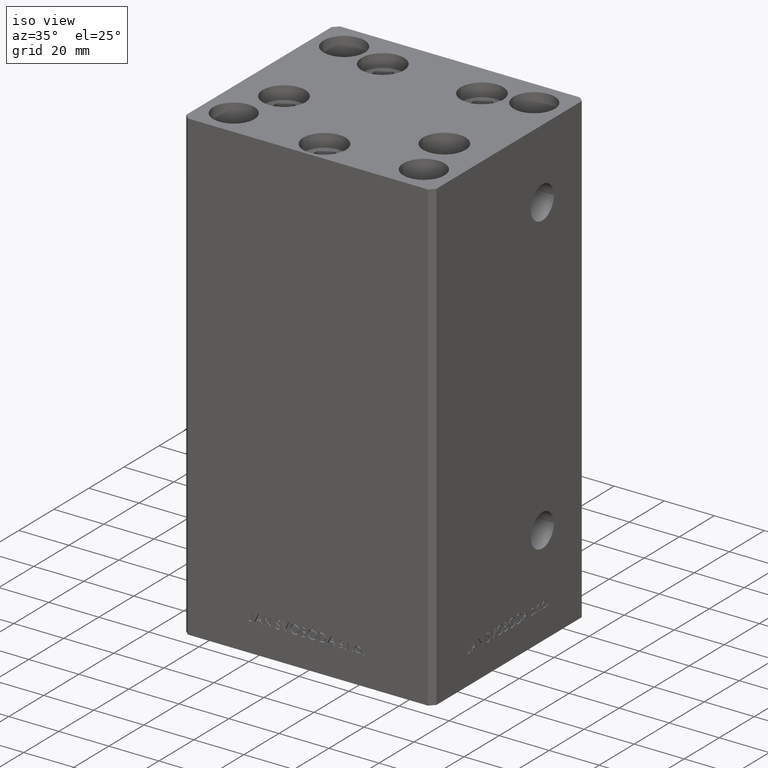
[diagram: clean part render]
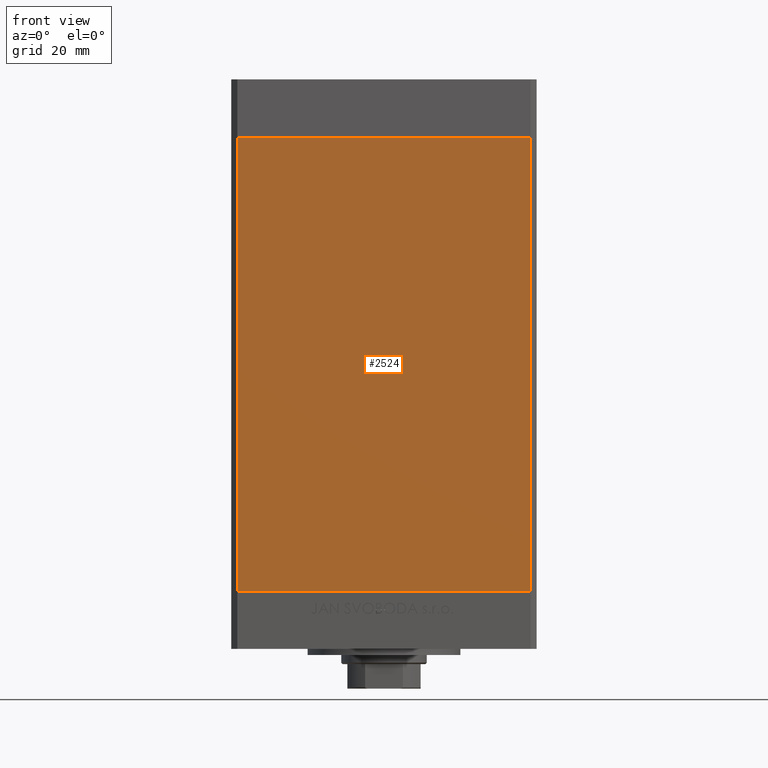
[diagram: tour spotlight — one face highlighted and labeled with its STEP entity id]
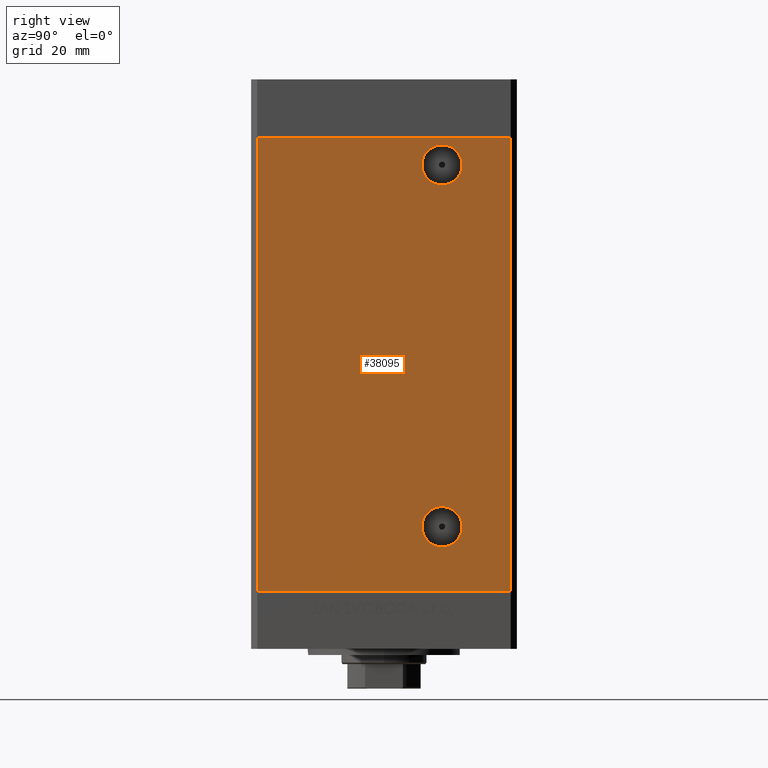
[diagram: tour spotlight — one face highlighted and labeled with its STEP entity id]
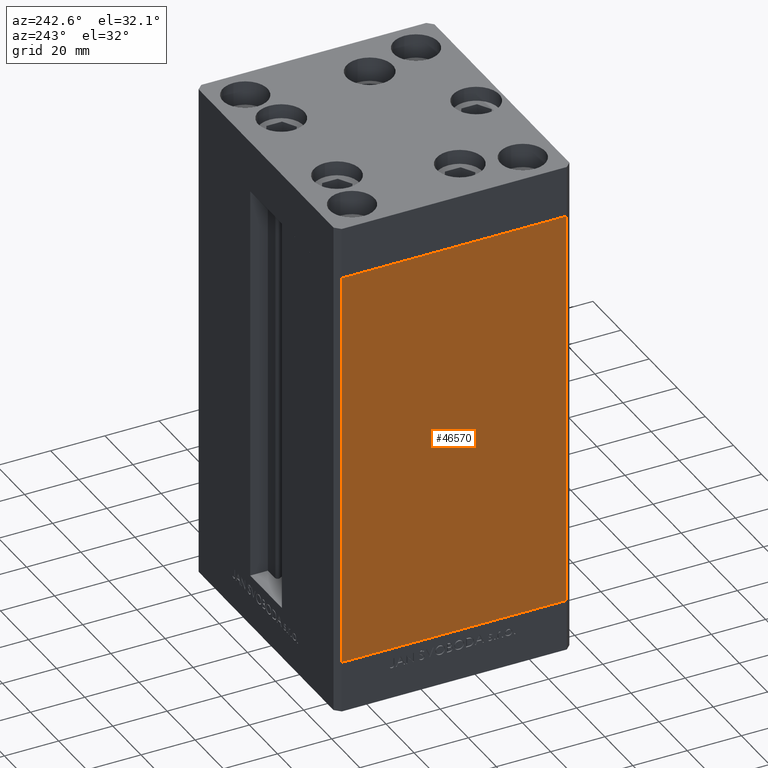
[diagram: tour spotlight — one face highlighted and labeled with its STEP entity id]
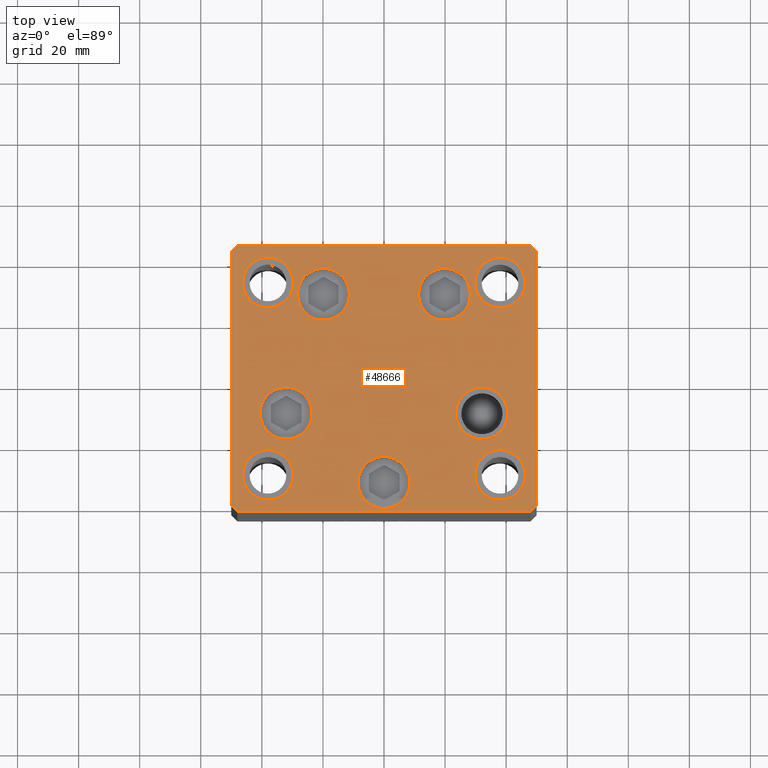
[diagram: tour spotlight — one face highlighted and labeled with its STEP entity id]
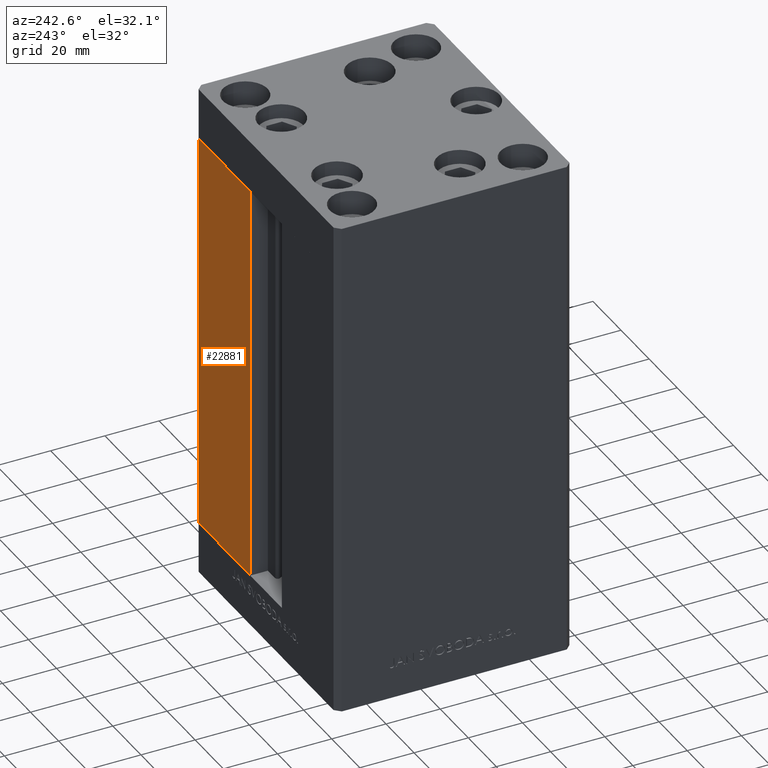
[diagram: tour spotlight — one face highlighted and labeled with its STEP entity id]
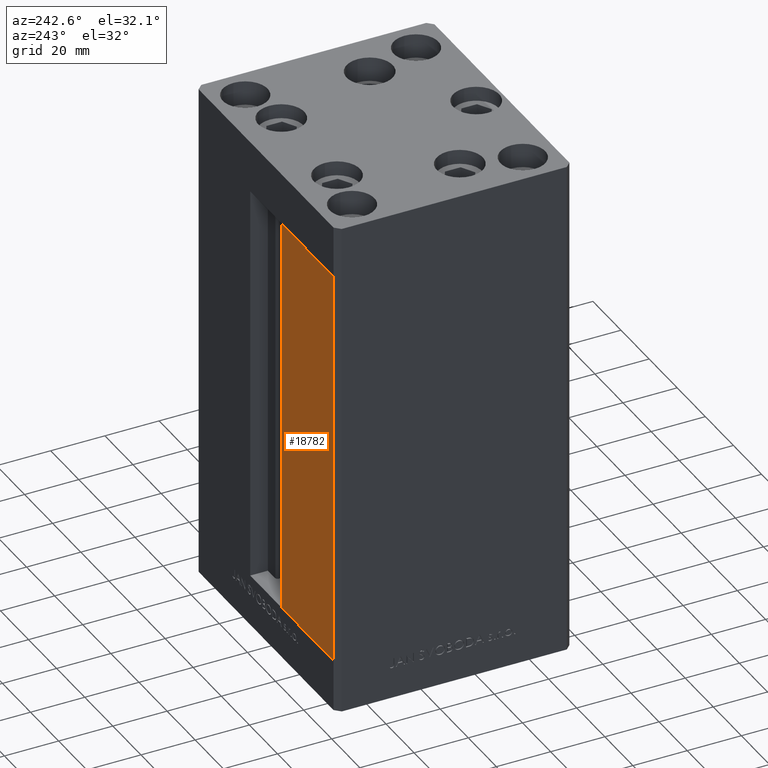
[diagram: tour spotlight — one face highlighted and labeled with its STEP entity id]
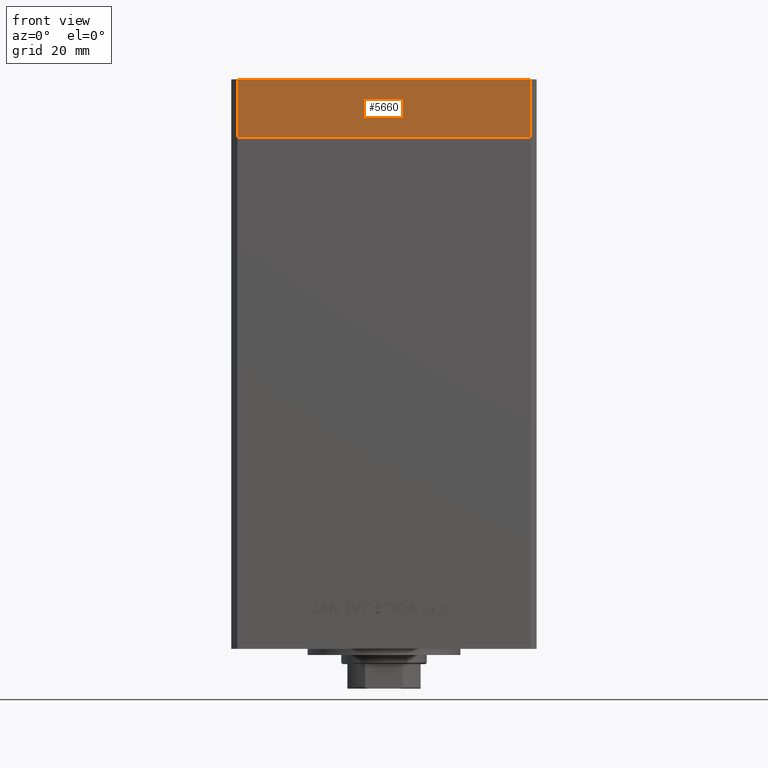
[diagram: tour spotlight — one face highlighted and labeled with its STEP entity id]
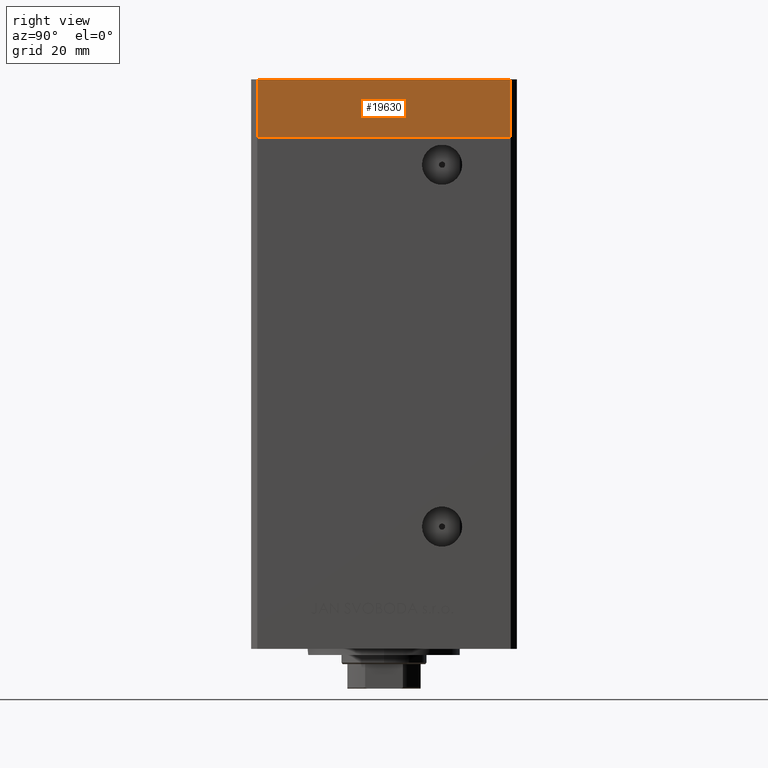
[diagram: tour spotlight — one face highlighted and labeled with its STEP entity id]
A machine part: a face-by-face anatomy tour. The part has 1172 B-rep faces; the first image is the clean iso view, then the 8 largest visible faces are spotlighted one at a time (largest first), each with its STEP entity span.

Face 1 — front view, entity #2524. In plain terms, the highlighted planar face has unit normal (0, 1, 0).
Definition (entity closure, byte-faithful):
#2524 = ADVANCED_FACE ( 'NONE', ( #46675 ), #7572, .F. ) ;
#5123 = CARTESIAN_POINT ( 'NONE',  ( -47.99999999999998579, -43.50000000000000000, 0.000000000000000000 ) ) ;
#5767 = VERTEX_POINT ( 'NONE', #42306 ) ;
#6052 = ORIENTED_EDGE ( 'NONE', *, *, #13514, .T. ) ;
#6137 = VECTOR ( 'NONE', #25437, 1000.000000000000000 ) ;
#6240 = AXIS2_PLACEMENT_3D ( 'NONE', #22899, #23383, #11577 ) ;
#7572 = PLANE ( 'NONE',  #6240 ) ;
#10107 = LINE ( 'NONE', #48481, #6137 ) ;
#10811 = ORIENTED_EDGE ( 'NONE', *, *, #49354, .F. ) ;
#11577 = DIRECTION ( 'NONE',  ( 0.000000000000000000, -0.000000000000000000, 1.000000000000000000 ) ) ;
#11850 = DIRECTION ( 'NONE',  ( 1.000000000000000000, 0.000000000000000000, 0.000000000000000000 ) ) ;
#12420 = CARTESIAN_POINT ( 'NONE',  ( 47.99999999999998579, -43.50000000000000000, 148.5000000000000000 ) ) ;
#12434 = DIRECTION ( 'NONE',  ( -0.000000000000000000, -0.000000000000000000, -1.000000000000000000 ) ) ;
#12522 = VERTEX_POINT ( 'NONE', #42968 ) ;
#12668 = LINE ( 'NONE', #35987, #34889 ) ;
#13514 = EDGE_CURVE ( 'NONE', #5767, #16871, #12668, .T. ) ;
#15611 = CARTESIAN_POINT ( 'NONE',  ( -47.99999999999998579, -43.50000000000000000, 0.000000000000000000 ) ) ;
#16871 = VERTEX_POINT ( 'NONE', #5123 ) ;
#20731 = EDGE_CURVE ( 'NONE', #16871, #12522, #42683, .T. ) ;
#21312 = VECTOR ( 'NONE', #12434, 1000.000000000000000 ) ;
#22757 = LINE ( 'NONE', #46788, #21312 ) ;
#22899 = CARTESIAN_POINT ( 'NONE',  ( -47.99999999999998579, -43.50000000000000000, 148.5000000000000000 ) ) ;
#23240 = ORIENTED_EDGE ( 'NONE', *, *, #46555, .F. ) ;
#23383 = DIRECTION ( 'NONE',  ( 0.000000000000000000, 1.000000000000000000, 0.000000000000000000 ) ) ;
#25437 = DIRECTION ( 'NONE',  ( 1.000000000000000000, 0.000000000000000000, 0.000000000000000000 ) ) ;
#27737 = DIRECTION ( 'NONE',  ( -0.000000000000000000, -0.000000000000000000, -1.000000000000000000 ) ) ;
#30742 = ORIENTED_EDGE ( 'NONE', *, *, #20731, .T. ) ;
#31861 = VERTEX_POINT ( 'NONE', #12420 ) ;
#34889 = VECTOR ( 'NONE', #27737, 1000.000000000000000 ) ;
#35987 = CARTESIAN_POINT ( 'NONE',  ( -47.99999999999998579, -43.50000000000000000, 148.5000000000000000 ) ) ;
#37898 = EDGE_LOOP ( 'NONE', ( #30742, #23240, #10811, #6052 ) ) ;
#42306 = CARTESIAN_POINT ( 'NONE',  ( -47.99999999999998579, -43.50000000000000000, 148.5000000000000000 ) ) ;
#42683 = LINE ( 'NONE', #15611, #44630 ) ;
#42968 = CARTESIAN_POINT ( 'NONE',  ( 47.99999999999998579, -43.50000000000000000, 0.000000000000000000 ) ) ;
#44630 = VECTOR ( 'NONE', #11850, 1000.000000000000000 ) ;
#46555 = EDGE_CURVE ( 'NONE', #31861, #12522, #22757, .T. ) ;
#46675 = FACE_OUTER_BOUND ( 'NONE', #37898, .T. ) ;
#46788 = CARTESIAN_POINT ( 'NONE',  ( 47.99999999999998579, -43.50000000000000000, 148.5000000000000000 ) ) ;
#48481 = CARTESIAN_POINT ( 'NONE',  ( -47.99999999999998579, -43.50000000000000000, 148.5000000000000000 ) ) ;
#49354 = EDGE_CURVE ( 'NONE', #5767, #31861, #10107, .T. ) ;

Face 2 — right view, entity #38095. In plain terms, the highlighted planar face has unit normal (1, -0, 0).
Definition (entity closure, byte-faithful):
#42 = CARTESIAN_POINT ( 'NONE',  ( 50.00000000000000711, 19.00000000000000000, 20.99999999999998934 ) ) ;
#1004 = EDGE_LOOP ( 'NONE', ( #2733, #34012, #39973, #4254 ) ) ;
#1106 = EDGE_CURVE ( 'NONE', #13713, #30093, #6198, .T. ) ;
#1894 = AXIS2_PLACEMENT_3D ( 'NONE', #8116, #49275, #23433 ) ;
#2358 = CARTESIAN_POINT ( 'NONE',  ( 50.00000000000001421, 41.49999999999999289, 148.5000000000000000 ) ) ;
#2690 = LINE ( 'NONE', #3441, #29149 ) ;
#2733 = ORIENTED_EDGE ( 'NONE', *, *, #46235, .F. ) ;
#3441 = CARTESIAN_POINT ( 'NONE',  ( 50.00000000000001421, 41.49999999999999289, 148.5000000000000000 ) ) ;
#4254 = ORIENTED_EDGE ( 'NONE', *, *, #25987, .T. ) ;
#4959 = CARTESIAN_POINT ( 'NONE',  ( 50.00000000000000711, 19.00000000000000000, 20.99999999999998934 ) ) ;
#5710 = LINE ( 'NONE', #25281, #7639 ) ;
#5888 = VERTEX_POINT ( 'NONE', #18192 ) ;
#6198 = CIRCLE ( 'NONE', #46253, 6.580000000000016058 ) ;
#6632 = DIRECTION ( 'NONE',  ( 1.000000000000000000, -2.275047181608927644E-16, 0.000000000000000000 ) ) ;
#6740 = CARTESIAN_POINT ( 'NONE',  ( 50.00000000000000711, 19.00000000000000000, 139.4999999999999716 ) ) ;
#7639 = VECTOR ( 'NONE', #32789, 1000.000000000000000 ) ;
#7882 = PLANE ( 'NONE',  #1894 ) ;
#8116 = CARTESIAN_POINT ( 'NONE',  ( 50.00000000000001421, 41.49999999999999289, 148.5000000000000000 ) ) ;
#8767 = EDGE_CURVE ( 'NONE', #30952, #44759, #2690, .T. ) ;
#9143 = CARTESIAN_POINT ( 'NONE',  ( 49.99999999999998579, -41.49999999999999289, 0.000000000000000000 ) ) ;
#9196 = CARTESIAN_POINT ( 'NONE',  ( 50.00000000000000711, 25.58000000000001606, 139.4999999999999716 ) ) ;
#10253 = DIRECTION ( 'NONE',  ( 1.000000000000000000, -2.275047181608927644E-16, 0.000000000000000000 ) ) ;
#12789 = EDGE_CURVE ( 'NONE', #38623, #42017, #22066, .T. ) ;
#13481 = VERTEX_POINT ( 'NONE', #9143 ) ;
#13713 = VERTEX_POINT ( 'NONE', #9196 ) ;
#14533 = CARTESIAN_POINT ( 'NONE',  ( 50.00000000000000711, 25.58000000000000540, 20.99999999999998934 ) ) ;
#14753 = DIRECTION ( 'NONE',  ( 0.000000000000000000, 1.000000000000000000, 0.000000000000000000 ) ) ;
#15005 = CARTESIAN_POINT ( 'NONE',  ( 49.99999999999998579, -41.49999999999999289, 148.5000000000000000 ) ) ;
#15426 = EDGE_CURVE ( 'NONE', #42017, #38623, #40550, .T. ) ;
#16737 = VECTOR ( 'NONE', #41868, 1000.000000000000000 ) ;
#18192 = CARTESIAN_POINT ( 'NONE',  ( 50.00000000000001421, 41.49999999999999289, 0.000000000000000000 ) ) ;
#18284 = EDGE_LOOP ( 'NONE', ( #34317, #48679 ) ) ;
#18413 = CARTESIAN_POINT ( 'NONE',  ( 50.00000000000000711, 19.00000000000000000, 139.4999999999999716 ) ) ;
#18672 = EDGE_CURVE ( 'NONE', #30952, #5888, #49370, .T. ) ;
#18912 = DIRECTION ( 'NONE',  ( 0.000000000000000000, 1.000000000000000000, 0.000000000000000000 ) ) ;
#20521 = DIRECTION ( 'NONE',  ( 1.000000000000000000, -2.275047181608927644E-16, 0.000000000000000000 ) ) ;
#22066 = CIRCLE ( 'NONE', #36445, 6.580000000000006288 ) ;
#22461 = FACE_BOUND ( 'NONE', #29614, .T. ) ;
#23433 = DIRECTION ( 'NONE',  ( 3.344045254895050480E-16, 1.000000000000000000, 0.000000000000000000 ) ) ;
#25281 = CARTESIAN_POINT ( 'NONE',  ( 50.00000000000001421, 41.49999999999999289, 0.000000000000000000 ) ) ;
#25510 = CARTESIAN_POINT ( 'NONE',  ( 50.00000000000000711, 12.41999999999999282, 20.99999999999998934 ) ) ;
#25987 = EDGE_CURVE ( 'NONE', #44759, #13481, #33354, .T. ) ;
#26466 = FACE_BOUND ( 'NONE', #18284, .T. ) ;
#29149 = VECTOR ( 'NONE', #33542, 1000.000000000000000 ) ;
#29612 = CARTESIAN_POINT ( 'NONE',  ( 49.99999999999998579, -41.49999999999999289, 148.5000000000000000 ) ) ;
#29614 = EDGE_LOOP ( 'NONE', ( #43156, #41106 ) ) ;
#29937 = AXIS2_PLACEMENT_3D ( 'NONE', #6740, #10253, #14753 ) ;
#30093 = VERTEX_POINT ( 'NONE', #36349 ) ;
#30886 = DIRECTION ( 'NONE',  ( 0.000000000000000000, 1.000000000000000000, 0.000000000000000000 ) ) ;
#30952 = VERTEX_POINT ( 'NONE', #2358 ) ;
#32789 = DIRECTION ( 'NONE',  ( -3.344045254895050973E-16, -1.000000000000000000, 0.000000000000000000 ) ) ;
#33132 = CIRCLE ( 'NONE', #29937, 6.580000000000016058 ) ;
#33354 = LINE ( 'NONE', #29612, #16737 ) ;
#33542 = DIRECTION ( 'NONE',  ( -3.344045254895050973E-16, -1.000000000000000000, 0.000000000000000000 ) ) ;
#34012 = ORIENTED_EDGE ( 'NONE', *, *, #18672, .F. ) ;
#34317 = ORIENTED_EDGE ( 'NONE', *, *, #12789, .F. ) ;
#35810 = DIRECTION ( 'NONE',  ( 0.000000000000000000, 1.000000000000000000, 0.000000000000000000 ) ) ;
#36349 = CARTESIAN_POINT ( 'NONE',  ( 50.00000000000000711, 12.41999999999998394, 139.4999999999999716 ) ) ;
#36445 = AXIS2_PLACEMENT_3D ( 'NONE', #42, #38162, #30886 ) ;
#38095 = ADVANCED_FACE ( 'NONE', ( #26466, #22461, #42228 ), #7882, .T. ) ;
#38162 = DIRECTION ( 'NONE',  ( 1.000000000000000000, -2.275047181608927644E-16, 0.000000000000000000 ) ) ;
#38623 = VERTEX_POINT ( 'NONE', #14533 ) ;
#39973 = ORIENTED_EDGE ( 'NONE', *, *, #8767, .T. ) ;
#40550 = CIRCLE ( 'NONE', #48577, 6.580000000000006288 ) ;
#41106 = ORIENTED_EDGE ( 'NONE', *, *, #41605, .F. ) ;
#41340 = CARTESIAN_POINT ( 'NONE',  ( 50.00000000000001421, 41.49999999999999289, 148.5000000000000000 ) ) ;
#41605 = EDGE_CURVE ( 'NONE', #30093, #13713, #33132, .T. ) ;
#41868 = DIRECTION ( 'NONE',  ( -0.000000000000000000, -0.000000000000000000, -1.000000000000000000 ) ) ;
#42017 = VERTEX_POINT ( 'NONE', #25510 ) ;
#42228 = FACE_OUTER_BOUND ( 'NONE', #1004, .T. ) ;
#42258 = VECTOR ( 'NONE', #44614, 1000.000000000000000 ) ;
#43156 = ORIENTED_EDGE ( 'NONE', *, *, #1106, .F. ) ;
#44614 = DIRECTION ( 'NONE',  ( -0.000000000000000000, -0.000000000000000000, -1.000000000000000000 ) ) ;
#44759 = VERTEX_POINT ( 'NONE', #15005 ) ;
#46235 = EDGE_CURVE ( 'NONE', #5888, #13481, #5710, .T. ) ;
#46253 = AXIS2_PLACEMENT_3D ( 'NONE', #18413, #6632, #18912 ) ;
#48577 = AXIS2_PLACEMENT_3D ( 'NONE', #4959, #20521, #35810 ) ;
#48679 = ORIENTED_EDGE ( 'NONE', *, *, #15426, .F. ) ;
#49275 = DIRECTION ( 'NONE',  ( 1.000000000000000000, -3.344045254895050480E-16, 0.000000000000000000 ) ) ;
#49370 = LINE ( 'NONE', #41340, #42258 ) ;

Face 3 — auxiliary view, entity #46570. In plain terms, the highlighted planar face has unit normal (1, 0, 0).
Definition (entity closure, byte-faithful):
#564 = ORIENTED_EDGE ( 'NONE', *, *, #30893, .T. ) ;
#4270 = EDGE_CURVE ( 'NONE', #11676, #13670, #29501, .T. ) ;
#4411 = CARTESIAN_POINT ( 'NONE',  ( -50.00000000000001421, 41.49999999999999289, 148.5000000000000000 ) ) ;
#9083 = VERTEX_POINT ( 'NONE', #41686 ) ;
#10080 = ORIENTED_EDGE ( 'NONE', *, *, #4270, .F. ) ;
#11190 = CARTESIAN_POINT ( 'NONE',  ( -50.00000000000001421, 41.49999999999999289, 148.5000000000000000 ) ) ;
#11325 = VECTOR ( 'NONE', #14137, 1000.000000000000000 ) ;
#11676 = VERTEX_POINT ( 'NONE', #14399 ) ;
#11937 = DIRECTION ( 'NONE',  ( 3.344045254895050973E-16, -1.000000000000000000, 0.000000000000000000 ) ) ;
#12716 = CARTESIAN_POINT ( 'NONE',  ( -49.99999999999998579, -41.49999999999999289, 0.000000000000000000 ) ) ;
#13070 = EDGE_CURVE ( 'NONE', #27312, #11676, #29599, .T. ) ;
#13670 = VERTEX_POINT ( 'NONE', #12716 ) ;
#14137 = DIRECTION ( 'NONE',  ( -0.000000000000000000, -0.000000000000000000, -1.000000000000000000 ) ) ;
#14399 = CARTESIAN_POINT ( 'NONE',  ( -49.99999999999998579, -41.49999999999999289, 148.5000000000000000 ) ) ;
#15448 = PLANE ( 'NONE',  #27724 ) ;
#16173 = VECTOR ( 'NONE', #48052, 1000.000000000000000 ) ;
#17230 = ORIENTED_EDGE ( 'NONE', *, *, #39232, .T. ) ;
#21061 = VECTOR ( 'NONE', #11937, 1000.000000000000000 ) ;
#25204 = CARTESIAN_POINT ( 'NONE',  ( -50.00000000000001421, 41.49999999999999289, 148.5000000000000000 ) ) ;
#27259 = FACE_OUTER_BOUND ( 'NONE', #39900, .T. ) ;
#27312 = VERTEX_POINT ( 'NONE', #11190 ) ;
#27724 = AXIS2_PLACEMENT_3D ( 'NONE', #4411, #35005, #31002 ) ;
#29501 = LINE ( 'NONE', #41009, #16173 ) ;
#29599 = LINE ( 'NONE', #32620, #46093 ) ;
#30893 = EDGE_CURVE ( 'NONE', #27312, #9083, #40971, .T. ) ;
#31002 = DIRECTION ( 'NONE',  ( -3.344045254895050480E-16, 1.000000000000000000, 0.000000000000000000 ) ) ;
#32289 = ORIENTED_EDGE ( 'NONE', *, *, #13070, .F. ) ;
#32620 = CARTESIAN_POINT ( 'NONE',  ( -50.00000000000001421, 41.49999999999999289, 148.5000000000000000 ) ) ;
#35005 = DIRECTION ( 'NONE',  ( 1.000000000000000000, 3.344045254895050480E-16, -0.000000000000000000 ) ) ;
#35762 = CARTESIAN_POINT ( 'NONE',  ( -50.00000000000001421, 41.49999999999999289, 0.000000000000000000 ) ) ;
#39232 = EDGE_CURVE ( 'NONE', #9083, #13670, #39525, .T. ) ;
#39525 = LINE ( 'NONE', #35762, #21061 ) ;
#39900 = EDGE_LOOP ( 'NONE', ( #17230, #10080, #32289, #564 ) ) ;
#40971 = LINE ( 'NONE', #25204, #11325 ) ;
#41009 = CARTESIAN_POINT ( 'NONE',  ( -49.99999999999998579, -41.49999999999999289, 148.5000000000000000 ) ) ;
#41115 = DIRECTION ( 'NONE',  ( 3.344045254895050973E-16, -1.000000000000000000, 0.000000000000000000 ) ) ;
#41686 = CARTESIAN_POINT ( 'NONE',  ( -50.00000000000001421, 41.49999999999999289, 0.000000000000000000 ) ) ;
#46093 = VECTOR ( 'NONE', #41115, 1000.000000000000000 ) ;
#46570 = ADVANCED_FACE ( 'NONE', ( #27259 ), #15448, .F. ) ;
#48052 = DIRECTION ( 'NONE',  ( -0.000000000000000000, -0.000000000000000000, -1.000000000000000000 ) ) ;

Face 4 — top view, entity #48666. In plain terms, the highlighted planar face has unit normal (0, 0, 1).
Definition (entity closure, byte-faithful):
#317 = DIRECTION ( 'NONE',  ( -0.7071067811865474617, 0.7071067811865474617, 0.000000000000000000 ) ) ;
#379 = LINE ( 'NONE', #49555, #5143 ) ;
#416 = FACE_OUTER_BOUND ( 'NONE', #40381, .T. ) ;
#1618 = DIRECTION ( 'NONE',  ( 1.000000000000000000, 0.000000000000000000, 0.000000000000000000 ) ) ;
#1687 = DIRECTION ( 'NONE',  ( 0.7071067811865474617, -0.7071067811865474617, 0.000000000000000000 ) ) ;
#1897 = EDGE_CURVE ( 'NONE', #15250, #6557, #27103, .T. ) ;
#1930 = CARTESIAN_POINT ( 'NONE',  ( -50.00000000000000000, -41.50000000000000000, 0.000000000000000000 ) ) ;
#2087 = ORIENTED_EDGE ( 'NONE', *, *, #15836, .T. ) ;
#2426 = DIRECTION ( 'NONE',  ( 1.000000000000000000, 0.000000000000000000, 0.000000000000000000 ) ) ;
#2568 = ORIENTED_EDGE ( 'NONE', *, *, #16957, .F. ) ;
#2708 = CIRCLE ( 'NONE', #24367, 8.250000000000000000 ) ;
#2758 = VERTEX_POINT ( 'NONE', #18559 ) ;
#3181 = DIRECTION ( 'NONE',  ( 1.000000000000000000, 0.000000000000000000, 0.000000000000000000 ) ) ;
#3205 = VERTEX_POINT ( 'NONE', #28820 ) ;
#3386 = CARTESIAN_POINT ( 'NONE',  ( 11.32068048781373015, 27.62500000000000000, 0.000000000000000000 ) ) ;
#3423 = CARTESIAN_POINT ( 'NONE',  ( 32.05550741379015278, -11.33333333333333037, 0.000000000000000000 ) ) ;
#3429 = DIRECTION ( 'NONE',  ( -1.003213576468515193E-15, 1.000000000000000000, 0.000000000000000000 ) ) ;
#3671 = DIRECTION ( 'NONE',  ( 0.000000000000000000, -0.000000000000000000, -1.000000000000000000 ) ) ;
#4099 = ORIENTED_EDGE ( 'NONE', *, *, #41877, .T. ) ;
#4681 = FACE_BOUND ( 'NONE', #30616, .T. ) ;
#4709 = DIRECTION ( 'NONE',  ( 0.000000000000000000, -0.000000000000000000, -1.000000000000000000 ) ) ;
#4714 = VERTEX_POINT ( 'NONE', #20067 ) ;
#4725 = CARTESIAN_POINT ( 'NONE',  ( 4.163799117101000559E-15, -34.00000000000000000, 0.000000000000000000 ) ) ;
#4893 = CARTESIAN_POINT ( 'NONE',  ( -11.32068048781373726, 27.62499999999999645, 0.000000000000000000 ) ) ;
#5090 = DIRECTION ( 'NONE',  ( 1.000000000000000000, 0.000000000000000000, 0.000000000000000000 ) ) ;
#5143 = VECTOR ( 'NONE', #34732, 1000.000000000000000 ) ;
#5212 = CIRCLE ( 'NONE', #14014, 8.500000000000000000 ) ;
#5368 = CIRCLE ( 'NONE', #39020, 8.250000000000000000 ) ;
#5376 = CARTESIAN_POINT ( 'NONE',  ( -38.00000000000000000, 31.50000000000000000, 0.000000000000000000 ) ) ;
#5690 = VERTEX_POINT ( 'NONE', #48858 ) ;
#5868 = EDGE_CURVE ( 'NONE', #2758, #49202, #13803, .T. ) ;
#5939 = ORIENTED_EDGE ( 'NONE', *, *, #33679, .F. ) ;
#6092 = EDGE_LOOP ( 'NONE', ( #25659, #2568 ) ) ;
#6557 = VERTEX_POINT ( 'NONE', #13693 ) ;
#6847 = DIRECTION ( 'NONE',  ( 0.000000000000000000, 0.000000000000000000, 1.000000000000000000 ) ) ;
#7023 = VERTEX_POINT ( 'NONE', #40967 ) ;
#7101 = DIRECTION ( 'NONE',  ( 1.000000000000000000, 0.000000000000000000, 0.000000000000000000 ) ) ;
#7975 = DIRECTION ( 'NONE',  ( 1.000000000000000000, 0.000000000000000000, 0.000000000000000000 ) ) ;
#7991 = DIRECTION ( 'NONE',  ( 0.000000000000000000, 0.000000000000000000, 1.000000000000000000 ) ) ;
#8031 = DIRECTION ( 'NONE',  ( 0.000000000000000000, -0.000000000000000000, -1.000000000000000000 ) ) ;
#8188 = FACE_BOUND ( 'NONE', #42641, .T. ) ;
#8433 = CIRCLE ( 'NONE', #35689, 8.500000000000000000 ) ;
#8440 = FACE_BOUND ( 'NONE', #41411, .T. ) ;
#8824 = VERTEX_POINT ( 'NONE', #44830 ) ;
#8965 = ORIENTED_EDGE ( 'NONE', *, *, #45511, .T. ) ;
#8966 = EDGE_CURVE ( 'NONE', #31712, #35162, #2708, .T. ) ;
#8976 = CIRCLE ( 'NONE', #19367, 8.250000000000000000 ) ;
#9454 = EDGE_LOOP ( 'NONE', ( #20092, #18007 ) ) ;
#9470 = VERTEX_POINT ( 'NONE', #13255 ) ;
#9805 = DIRECTION ( 'NONE',  ( 0.7071067811865463515, 0.7071067811865487940, 0.000000000000000000 ) ) ;
#9869 = DIRECTION ( 'NONE',  ( 0.000000000000000000, 0.000000000000000000, 1.000000000000000000 ) ) ;
#10097 = ORIENTED_EDGE ( 'NONE', *, *, #49258, .T. ) ;
#10171 = DIRECTION ( 'NONE',  ( 0.000000000000000000, -0.000000000000000000, -1.000000000000000000 ) ) ;
#10289 = ORIENTED_EDGE ( 'NONE', *, *, #44266, .T. ) ;
#10587 = DIRECTION ( 'NONE',  ( 1.000000000000000000, 0.000000000000000000, 0.000000000000000000 ) ) ;
#10867 = ORIENTED_EDGE ( 'NONE', *, *, #28725, .T. ) ;
#10900 = CIRCLE ( 'NONE', #42152, 8.250000000000000000 ) ;
#11219 = PLANE ( 'NONE',  #33345 ) ;
#11691 = CARTESIAN_POINT ( 'NONE',  ( 38.00000000000000000, 31.49999999999999289, 0.000000000000000000 ) ) ;
#11725 = CARTESIAN_POINT ( 'NONE',  ( 38.00000000000000000, 31.49999999999999289, 0.000000000000000000 ) ) ;
#11809 = EDGE_CURVE ( 'NONE', #4714, #49180, #32173, .T. ) ;
#11828 = VERTEX_POINT ( 'NONE', #31436 ) ;
#12003 = CIRCLE ( 'NONE', #43232, 8.499999999999992895 ) ;
#12384 = EDGE_CURVE ( 'NONE', #8824, #15079, #29536, .T. ) ;
#13035 = ORIENTED_EDGE ( 'NONE', *, *, #29723, .T. ) ;
#13255 = CARTESIAN_POINT ( 'NONE',  ( 28.32068048781373193, 27.62500000000000000, 0.000000000000000000 ) ) ;
#13693 = CARTESIAN_POINT ( 'NONE',  ( 29.74999999999999645, -31.49999999999999289, 0.000000000000000000 ) ) ;
#13803 = CIRCLE ( 'NONE', #41842, 8.500000000000000000 ) ;
#14014 = AXIS2_PLACEMENT_3D ( 'NONE', #22862, #8031, #46393 ) ;
#14303 = EDGE_CURVE ( 'NONE', #11828, #34244, #27728, .T. ) ;
#14553 = VERTEX_POINT ( 'NONE', #4893 ) ;
#14662 = DIRECTION ( 'NONE',  ( 0.000000000000000000, -0.000000000000000000, -1.000000000000000000 ) ) ;
#14842 = CARTESIAN_POINT ( 'NONE',  ( 47.99999999999990763, 43.50000000000000000, 0.000000000000000000 ) ) ;
#14911 = CARTESIAN_POINT ( 'NONE',  ( -19.82068048781373903, 27.62499999999999645, 0.000000000000000000 ) ) ;
#14987 = DIRECTION ( 'NONE',  ( 1.000000000000000000, 0.000000000000000000, 0.000000000000000000 ) ) ;
#15079 = VERTEX_POINT ( 'NONE', #23608 ) ;
#15116 = CARTESIAN_POINT ( 'NONE',  ( -40.55550741379015278, -11.33333333333333925, 0.000000000000000000 ) ) ;
#15126 = CIRCLE ( 'NONE', #45597, 8.250000000000000000 ) ;
#15229 = CIRCLE ( 'NONE', #43263, 8.500000000000000000 ) ;
#15250 = VERTEX_POINT ( 'NONE', #21078 ) ;
#15518 = VECTOR ( 'NONE', #1687, 1000.000000000000114 ) ;
#15552 = AXIS2_PLACEMENT_3D ( 'NONE', #29030, #43822, #2426 ) ;
#15714 = CARTESIAN_POINT ( 'NONE',  ( -46.25000000000000000, 31.50000000000000000, 0.000000000000000000 ) ) ;
#15836 = EDGE_CURVE ( 'NONE', #37533, #17765, #18355, .T. ) ;
#15966 = FACE_BOUND ( 'NONE', #9454, .T. ) ;
#16131 = CARTESIAN_POINT ( 'NONE',  ( -47.99999999999999289, -43.50000000000001421, 0.000000000000000000 ) ) ;
#16262 = DIRECTION ( 'NONE',  ( 1.000000000000000000, 0.000000000000000000, 0.000000000000000000 ) ) ;
#16410 = DIRECTION ( 'NONE',  ( 0.000000000000000000, 0.000000000000000000, 1.000000000000000000 ) ) ;
#16603 = LINE ( 'NONE', #31915, #17919 ) ;
#16957 = EDGE_CURVE ( 'NONE', #40777, #29815, #5368, .T. ) ;
#17087 = LINE ( 'NONE', #32644, #23297 ) ;
#17599 = EDGE_LOOP ( 'NONE', ( #46879, #33472 ) ) ;
#17664 = DIRECTION ( 'NONE',  ( 1.000000000000000000, 0.000000000000000000, 0.000000000000000000 ) ) ;
#17712 = ORIENTED_EDGE ( 'NONE', *, *, #41130, .T. ) ;
#17765 = VERTEX_POINT ( 'NONE', #46318 ) ;
#17919 = VECTOR ( 'NONE', #317, 1000.000000000000114 ) ;
#18007 = ORIENTED_EDGE ( 'NONE', *, *, #5868, .T. ) ;
#18264 = CARTESIAN_POINT ( 'NONE',  ( -46.24999999999999289, -31.50000000000000000, 0.000000000000000000 ) ) ;
#18355 = LINE ( 'NONE', #14842, #36543 ) ;
#18365 = CARTESIAN_POINT ( 'NONE',  ( -28.32068048781373903, 27.62499999999999645, 0.000000000000000000 ) ) ;
#18442 = DIRECTION ( 'NONE',  ( 1.000000000000000000, 0.000000000000000000, 0.000000000000000000 ) ) ;
#18559 = CARTESIAN_POINT ( 'NONE',  ( -23.55550741379015278, -11.33333333333333748, 0.000000000000000000 ) ) ;
#18689 = CARTESIAN_POINT ( 'NONE',  ( 46.25000000000000000, 31.49999999999999289, 0.000000000000000000 ) ) ;
#18853 = EDGE_CURVE ( 'NONE', #14553, #32780, #31872, .T. ) ;
#19367 = AXIS2_PLACEMENT_3D ( 'NONE', #41198, #6847, #49479 ) ;
#19464 = AXIS2_PLACEMENT_3D ( 'NONE', #43387, #36114, #35117 ) ;
#19514 = CARTESIAN_POINT ( 'NONE',  ( 19.82068048781373193, 27.62500000000000000, 0.000000000000000000 ) ) ;
#19769 = ORIENTED_EDGE ( 'NONE', *, *, #35721, .T. ) ;
#19793 = CIRCLE ( 'NONE', #21379, 8.250000000000000000 ) ;
#20032 = DIRECTION ( 'NONE',  ( 1.000000000000000000, 0.000000000000000000, 0.000000000000000000 ) ) ;
#20038 = DIRECTION ( 'NONE',  ( 0.000000000000000000, -0.000000000000000000, -1.000000000000000000 ) ) ;
#20067 = CARTESIAN_POINT ( 'NONE',  ( -47.99999999999999289, -43.50000000000001421, 0.000000000000000000 ) ) ;
#20092 = ORIENTED_EDGE ( 'NONE', *, *, #31938, .T. ) ;
#20979 = AXIS2_PLACEMENT_3D ( 'NONE', #33207, #36730, #17664 ) ;
#21078 = CARTESIAN_POINT ( 'NONE',  ( 46.25000000000000000, -31.49999999999999289, 0.000000000000000000 ) ) ;
#21379 = AXIS2_PLACEMENT_3D ( 'NONE', #47751, #16410, #27462 ) ;
#21841 = DIRECTION ( 'NONE',  ( 1.000000000000000000, 0.000000000000000000, 0.000000000000000000 ) ) ;
#22035 = VECTOR ( 'NONE', #5090, 1000.000000000000000 ) ;
#22207 = CIRCLE ( 'NONE', #42981, 8.499999999999992895 ) ;
#22517 = CARTESIAN_POINT ( 'NONE',  ( 50.00000000000000000, -41.49999999999999289, 0.000000000000000000 ) ) ;
#22862 = CARTESIAN_POINT ( 'NONE',  ( 4.163799117101000559E-15, -34.00000000000000000, 0.000000000000000000 ) ) ;
#22886 = ORIENTED_EDGE ( 'NONE', *, *, #18853, .T. ) ;
#23063 = CARTESIAN_POINT ( 'NONE',  ( 38.00000000000000000, -31.49999999999999289, 0.000000000000000000 ) ) ;
#23297 = VECTOR ( 'NONE', #9805, 1000.000000000000000 ) ;
#23608 = CARTESIAN_POINT ( 'NONE',  ( 49.99999999999992184, 41.49999999999998579, 0.000000000000000000 ) ) ;
#23760 = FACE_BOUND ( 'NONE', #44014, .T. ) ;
#23808 = CARTESIAN_POINT ( 'NONE',  ( 47.99999999999990763, 43.50000000000000000, 0.000000000000000000 ) ) ;
#24367 = AXIS2_PLACEMENT_3D ( 'NONE', #40032, #28013, #10587 ) ;
#24945 = DIRECTION ( 'NONE',  ( -0.7071067811865463515, -0.7071067811865487940, 0.000000000000000000 ) ) ;
#25339 = ORIENTED_EDGE ( 'NONE', *, *, #49415, .T. ) ;
#25659 = ORIENTED_EDGE ( 'NONE', *, *, #49018, .F. ) ;
#25873 = EDGE_CURVE ( 'NONE', #35162, #31712, #15126, .T. ) ;
#26539 = DIRECTION ( 'NONE',  ( -0.000000000000000000, 0.000000000000000000, 1.000000000000000000 ) ) ;
#26617 = ORIENTED_EDGE ( 'NONE', *, *, #43471, .T. ) ;
#27029 = FACE_BOUND ( 'NONE', #48954, .T. ) ;
#27055 = DIRECTION ( 'NONE',  ( 0.000000000000000000, 0.000000000000000000, 1.000000000000000000 ) ) ;
#27103 = CIRCLE ( 'NONE', #32668, 8.250000000000000000 ) ;
#27462 = DIRECTION ( 'NONE',  ( 1.000000000000000000, 0.000000000000000000, 0.000000000000000000 ) ) ;
#27500 = CARTESIAN_POINT ( 'NONE',  ( -8.499999999999996447, -34.00000000000000000, 0.000000000000000000 ) ) ;
#27613 = CIRCLE ( 'NONE', #15552, 8.500000000000000000 ) ;
#27728 = CIRCLE ( 'NONE', #30116, 8.250000000000000000 ) ;
#27789 = VECTOR ( 'NONE', #24945, 1000.000000000000000 ) ;
#28013 = DIRECTION ( 'NONE',  ( 0.000000000000000000, 0.000000000000000000, 1.000000000000000000 ) ) ;
#28023 = EDGE_CURVE ( 'NONE', #43552, #30925, #12003, .T. ) ;
#28725 = EDGE_CURVE ( 'NONE', #5690, #46527, #15229, .T. ) ;
#28820 = CARTESIAN_POINT ( 'NONE',  ( -50.00000000000000711, 41.49999999999995026, 0.000000000000000000 ) ) ;
#29030 = CARTESIAN_POINT ( 'NONE',  ( 19.82068048781373193, 27.62500000000000000, 0.000000000000000000 ) ) ;
#29536 = LINE ( 'NONE', #22517, #34042 ) ;
#29723 = EDGE_CURVE ( 'NONE', #49180, #8824, #17087, .T. ) ;
#29815 = VERTEX_POINT ( 'NONE', #48919 ) ;
#29934 = CARTESIAN_POINT ( 'NONE',  ( 47.99999999999999289, -43.50000000000001421, 0.000000000000000000 ) ) ;
#30116 = AXIS2_PLACEMENT_3D ( 'NONE', #11725, #27055, #7975 ) ;
#30616 = EDGE_LOOP ( 'NONE', ( #45916, #25339 ) ) ;
#30777 = FACE_BOUND ( 'NONE', #6092, .T. ) ;
#30925 = VERTEX_POINT ( 'NONE', #48011 ) ;
#31014 = DIRECTION ( 'NONE',  ( 0.000000000000000000, 0.000000000000000000, 1.000000000000000000 ) ) ;
#31436 = CARTESIAN_POINT ( 'NONE',  ( 29.74999999999999645, 31.49999999999999289, 0.000000000000000000 ) ) ;
#31712 = VERTEX_POINT ( 'NONE', #38755 ) ;
#31872 = CIRCLE ( 'NONE', #44669, 8.500000000000000000 ) ;
#31915 = CARTESIAN_POINT ( 'NONE',  ( 49.99999999999992184, 41.49999999999998579, 0.000000000000000000 ) ) ;
#31938 = EDGE_CURVE ( 'NONE', #49202, #2758, #36179, .T. ) ;
#32173 = LINE ( 'NONE', #16131, #22035 ) ;
#32644 = CARTESIAN_POINT ( 'NONE',  ( 47.99999999999999289, -43.50000000000001421, 0.000000000000000000 ) ) ;
#32668 = AXIS2_PLACEMENT_3D ( 'NONE', #23063, #7991, #20032 ) ;
#32780 = VERTEX_POINT ( 'NONE', #18365 ) ;
#33207 = CARTESIAN_POINT ( 'NONE',  ( -32.05550741379015278, -11.33333333333333925, 0.000000000000000000 ) ) ;
#33345 = AXIS2_PLACEMENT_3D ( 'NONE', #45819, #26539, #38791 ) ;
#33472 = ORIENTED_EDGE ( 'NONE', *, *, #14303, .F. ) ;
#33679 = EDGE_CURVE ( 'NONE', #6557, #15250, #8976, .T. ) ;
#33931 = CARTESIAN_POINT ( 'NONE',  ( 32.05550741379015278, -11.33333333333333037, 0.000000000000000000 ) ) ;
#34042 = VECTOR ( 'NONE', #3429, 1000.000000000000000 ) ;
#34244 = VERTEX_POINT ( 'NONE', #18689 ) ;
#34732 = DIRECTION ( 'NONE',  ( 8.360113137237628665E-17, -1.000000000000000000, 0.000000000000000000 ) ) ;
#34803 = ORIENTED_EDGE ( 'NONE', *, *, #42084, .T. ) ;
#35117 = DIRECTION ( 'NONE',  ( 1.000000000000000000, 0.000000000000000000, 0.000000000000000000 ) ) ;
#35162 = VERTEX_POINT ( 'NONE', #18264 ) ;
#35689 = AXIS2_PLACEMENT_3D ( 'NONE', #19514, #4709, #38083 ) ;
#35721 = EDGE_CURVE ( 'NONE', #32780, #14553, #48284, .T. ) ;
#35872 = ORIENTED_EDGE ( 'NONE', *, *, #25873, .F. ) ;
#36114 = DIRECTION ( 'NONE',  ( 0.000000000000000000, -0.000000000000000000, -1.000000000000000000 ) ) ;
#36179 = CIRCLE ( 'NONE', #20979, 8.500000000000000000 ) ;
#36210 = CARTESIAN_POINT ( 'NONE',  ( -48.00000000000000711, 43.49999999999996447, 0.000000000000000000 ) ) ;
#36543 = VECTOR ( 'NONE', #48952, 1000.000000000000000 ) ;
#36730 = DIRECTION ( 'NONE',  ( 0.000000000000000000, -0.000000000000000000, -1.000000000000000000 ) ) ;
#37533 = VERTEX_POINT ( 'NONE', #23808 ) ;
#37626 = CARTESIAN_POINT ( 'NONE',  ( -37.99999999999999289, -31.50000000000000000, 0.000000000000000000 ) ) ;
#37773 = ORIENTED_EDGE ( 'NONE', *, *, #8966, .F. ) ;
#38083 = DIRECTION ( 'NONE',  ( 1.000000000000000000, 0.000000000000000000, 0.000000000000000000 ) ) ;
#38755 = CARTESIAN_POINT ( 'NONE',  ( -29.74999999999999289, -31.50000000000000000, 0.000000000000000000 ) ) ;
#38791 = DIRECTION ( 'NONE',  ( 1.000000000000000000, 0.000000000000000000, 0.000000000000000000 ) ) ;
#39020 = AXIS2_PLACEMENT_3D ( 'NONE', #5376, #9869, #1618 ) ;
#39312 = LINE ( 'NONE', #1930, #15518 ) ;
#40032 = CARTESIAN_POINT ( 'NONE',  ( -37.99999999999999289, -31.50000000000000000, 0.000000000000000000 ) ) ;
#40381 = EDGE_LOOP ( 'NONE', ( #4099, #41661, #13035, #46098, #17712, #2087, #10097, #34803 ) ) ;
#40777 = VERTEX_POINT ( 'NONE', #15714 ) ;
#40967 = CARTESIAN_POINT ( 'NONE',  ( -50.00000000000000000, -41.50000000000000000, 0.000000000000000000 ) ) ;
#41130 = EDGE_CURVE ( 'NONE', #15079, #37533, #16603, .T. ) ;
#41198 = CARTESIAN_POINT ( 'NONE',  ( 38.00000000000000000, -31.49999999999999289, 0.000000000000000000 ) ) ;
#41411 = EDGE_LOOP ( 'NONE', ( #47645, #5939 ) ) ;
#41661 = ORIENTED_EDGE ( 'NONE', *, *, #11809, .T. ) ;
#41842 = AXIS2_PLACEMENT_3D ( 'NONE', #48791, #10171, #18442 ) ;
#41877 = EDGE_CURVE ( 'NONE', #7023, #4714, #39312, .T. ) ;
#42084 = EDGE_CURVE ( 'NONE', #3205, #7023, #379, .T. ) ;
#42152 = AXIS2_PLACEMENT_3D ( 'NONE', #11691, #31014, #46301 ) ;
#42184 = DIRECTION ( 'NONE',  ( 0.000000000000000000, -0.000000000000000000, -1.000000000000000000 ) ) ;
#42641 = EDGE_LOOP ( 'NONE', ( #10289, #10867 ) ) ;
#42981 = AXIS2_PLACEMENT_3D ( 'NONE', #33931, #42184, #7101 ) ;
#43232 = AXIS2_PLACEMENT_3D ( 'NONE', #3423, #3671, #3181 ) ;
#43263 = AXIS2_PLACEMENT_3D ( 'NONE', #4725, #20038, #16262 ) ;
#43387 = CARTESIAN_POINT ( 'NONE',  ( -19.82068048781373903, 27.62499999999999645, 0.000000000000000000 ) ) ;
#43471 = EDGE_CURVE ( 'NONE', #48971, #9470, #27613, .T. ) ;
#43552 = VERTEX_POINT ( 'NONE', #44811 ) ;
#43822 = DIRECTION ( 'NONE',  ( 0.000000000000000000, -0.000000000000000000, -1.000000000000000000 ) ) ;
#43981 = LINE ( 'NONE', #36210, #27789 ) ;
#44014 = EDGE_LOOP ( 'NONE', ( #19769, #22886 ) ) ;
#44266 = EDGE_CURVE ( 'NONE', #46527, #5690, #5212, .T. ) ;
#44669 = AXIS2_PLACEMENT_3D ( 'NONE', #14911, #14662, #14987 ) ;
#44811 = CARTESIAN_POINT ( 'NONE',  ( 23.55550741379015633, -11.33333333333333037, 0.000000000000000000 ) ) ;
#44830 = CARTESIAN_POINT ( 'NONE',  ( 50.00000000000000000, -41.49999999999999289, 0.000000000000000000 ) ) ;
#45511 = EDGE_CURVE ( 'NONE', #9470, #48971, #8433, .T. ) ;
#45584 = FACE_BOUND ( 'NONE', #48031, .T. ) ;
#45597 = AXIS2_PLACEMENT_3D ( 'NONE', #37626, #48408, #21841 ) ;
#45819 = CARTESIAN_POINT ( 'NONE',  ( 0.000000000000000000, 0.000000000000000000, 0.000000000000000000 ) ) ;
#45916 = ORIENTED_EDGE ( 'NONE', *, *, #28023, .T. ) ;
#46098 = ORIENTED_EDGE ( 'NONE', *, *, #12384, .T. ) ;
#46301 = DIRECTION ( 'NONE',  ( 1.000000000000000000, 0.000000000000000000, 0.000000000000000000 ) ) ;
#46308 = FACE_BOUND ( 'NONE', #17599, .T. ) ;
#46318 = CARTESIAN_POINT ( 'NONE',  ( -48.00000000000000711, 43.49999999999996447, 0.000000000000000000 ) ) ;
#46393 = DIRECTION ( 'NONE',  ( 1.000000000000000000, 0.000000000000000000, 0.000000000000000000 ) ) ;
#46527 = VERTEX_POINT ( 'NONE', #27500 ) ;
#46879 = ORIENTED_EDGE ( 'NONE', *, *, #47819, .F. ) ;
#47645 = ORIENTED_EDGE ( 'NONE', *, *, #1897, .F. ) ;
#47751 = CARTESIAN_POINT ( 'NONE',  ( -38.00000000000000000, 31.50000000000000000, 0.000000000000000000 ) ) ;
#47819 = EDGE_CURVE ( 'NONE', #34244, #11828, #10900, .T. ) ;
#48011 = CARTESIAN_POINT ( 'NONE',  ( 40.55550741379014568, -11.33333333333332860, 0.000000000000000000 ) ) ;
#48031 = EDGE_LOOP ( 'NONE', ( #37773, #35872 ) ) ;
#48284 = CIRCLE ( 'NONE', #19464, 8.500000000000000000 ) ;
#48408 = DIRECTION ( 'NONE',  ( 0.000000000000000000, 0.000000000000000000, 1.000000000000000000 ) ) ;
#48666 = ADVANCED_FACE ( 'NONE', ( #23760, #27029, #4681, #8188, #15966, #8440, #45584, #30777, #46308, #416 ), #11219, .T. ) ;
#48791 = CARTESIAN_POINT ( 'NONE',  ( -32.05550741379015278, -11.33333333333333925, 0.000000000000000000 ) ) ;
#48858 = CARTESIAN_POINT ( 'NONE',  ( 8.500000000000003553, -34.00000000000000000, 0.000000000000000000 ) ) ;
#48919 = CARTESIAN_POINT ( 'NONE',  ( -29.75000000000000000, 31.50000000000000000, 0.000000000000000000 ) ) ;
#48952 = DIRECTION ( 'NONE',  ( -1.000000000000000000, -3.614007241618350743E-16, 0.000000000000000000 ) ) ;
#48954 = EDGE_LOOP ( 'NONE', ( #26617, #8965 ) ) ;
#48971 = VERTEX_POINT ( 'NONE', #3386 ) ;
#49018 = EDGE_CURVE ( 'NONE', #29815, #40777, #19793, .T. ) ;
#49180 = VERTEX_POINT ( 'NONE', #29934 ) ;
#49202 = VERTEX_POINT ( 'NONE', #15116 ) ;
#49258 = EDGE_CURVE ( 'NONE', #17765, #3205, #43981, .T. ) ;
#49415 = EDGE_CURVE ( 'NONE', #30925, #43552, #22207, .T. ) ;
#49479 = DIRECTION ( 'NONE',  ( 1.000000000000000000, 0.000000000000000000, 0.000000000000000000 ) ) ;
#49555 = CARTESIAN_POINT ( 'NONE',  ( -50.00000000000000711, 41.49999999999995026, 0.000000000000000000 ) ) ;

Face 5 — auxiliary view, entity #22881. In plain terms, the highlighted planar face has unit normal (0, -1, 0).
Definition (entity closure, byte-faithful):
#986 = ORIENTED_EDGE ( 'NONE', *, *, #24220, .T. ) ;
#1638 = CARTESIAN_POINT ( 'NONE',  ( 48.00000000000000711, 43.50000000000000000, 148.5000000000000000 ) ) ;
#4673 = AXIS2_PLACEMENT_3D ( 'NONE', #31011, #30526, #19979 ) ;
#8562 = VERTEX_POINT ( 'NONE', #27328 ) ;
#11121 = VECTOR ( 'NONE', #25438, 1000.000000000000000 ) ;
#12181 = PLANE ( 'NONE',  #4673 ) ;
#12571 = DIRECTION ( 'NONE',  ( -1.000000000000000000, 0.000000000000000000, 0.000000000000000000 ) ) ;
#14214 = ORIENTED_EDGE ( 'NONE', *, *, #24907, .T. ) ;
#15390 = VERTEX_POINT ( 'NONE', #16746 ) ;
#16746 = CARTESIAN_POINT ( 'NONE',  ( 11.24999999999999112, 43.50000000000000000, 148.5000000000000000 ) ) ;
#16922 = DIRECTION ( 'NONE',  ( -0.000000000000000000, -0.000000000000000000, -1.000000000000000000 ) ) ;
#19979 = DIRECTION ( 'NONE',  ( 0.000000000000000000, -0.000000000000000000, -1.000000000000000000 ) ) ;
#20359 = CARTESIAN_POINT ( 'NONE',  ( -11.24999999999999822, 43.50000000000000000, 0.000000000000000000 ) ) ;
#20858 = LINE ( 'NONE', #20359, #25534 ) ;
#22420 = LINE ( 'NONE', #25929, #11121 ) ;
#22881 = ADVANCED_FACE ( 'NONE', ( #26770 ), #12181, .F. ) ;
#24220 = EDGE_CURVE ( 'NONE', #8562, #15390, #22420, .T. ) ;
#24907 = EDGE_CURVE ( 'NONE', #49556, #8562, #20858, .T. ) ;
#24991 = VECTOR ( 'NONE', #16922, 1000.000000000000000 ) ;
#25438 = DIRECTION ( 'NONE',  ( -0.000000000000000000, -0.000000000000000000, 1.000000000000000000 ) ) ;
#25534 = VECTOR ( 'NONE', #12571, 1000.000000000000000 ) ;
#25723 = LINE ( 'NONE', #29968, #36826 ) ;
#25929 = CARTESIAN_POINT ( 'NONE',  ( 11.24999999999999822, 43.50000000000000000, 0.000000000000000000 ) ) ;
#26770 = FACE_OUTER_BOUND ( 'NONE', #37589, .T. ) ;
#27328 = CARTESIAN_POINT ( 'NONE',  ( 11.24999999999999822, 43.50000000000000000, 0.000000000000000000 ) ) ;
#27992 = LINE ( 'NONE', #1638, #24991 ) ;
#28261 = EDGE_CURVE ( 'NONE', #15390, #29512, #25723, .T. ) ;
#29512 = VERTEX_POINT ( 'NONE', #37597 ) ;
#29968 = CARTESIAN_POINT ( 'NONE',  ( -11.24999999999999822, 43.50000000000000000, 148.5000000000000000 ) ) ;
#30526 = DIRECTION ( 'NONE',  ( 0.000000000000000000, -1.000000000000000000, 0.000000000000000000 ) ) ;
#31011 = CARTESIAN_POINT ( 'NONE',  ( -11.24999999999999822, 43.50000000000000000, 148.5000000000000000 ) ) ;
#31876 = EDGE_CURVE ( 'NONE', #29512, #49556, #27992, .T. ) ;
#34752 = ORIENTED_EDGE ( 'NONE', *, *, #31876, .T. ) ;
#36826 = VECTOR ( 'NONE', #45744, 1000.000000000000000 ) ;
#37589 = EDGE_LOOP ( 'NONE', ( #14214, #986, #41855, #34752 ) ) ;
#37597 = CARTESIAN_POINT ( 'NONE',  ( 48.00000000000000711, 43.50000000000000000, 148.5000000000000000 ) ) ;
#40159 = CARTESIAN_POINT ( 'NONE',  ( 48.00000000000000711, 43.50000000000000000, 0.000000000000000000 ) ) ;
#41855 = ORIENTED_EDGE ( 'NONE', *, *, #28261, .T. ) ;
#45744 = DIRECTION ( 'NONE',  ( 1.000000000000000000, 0.000000000000000000, 0.000000000000000000 ) ) ;
#49556 = VERTEX_POINT ( 'NONE', #40159 ) ;

Face 6 — auxiliary view, entity #18782. In plain terms, the highlighted planar face has unit normal (0, -1, 0).
Definition (entity closure, byte-faithful):
#2858 = EDGE_CURVE ( 'NONE', #5399, #27551, #10779, .T. ) ;
#4196 = VERTEX_POINT ( 'NONE', #24018 ) ;
#5399 = VERTEX_POINT ( 'NONE', #25443 ) ;
#7969 = FACE_OUTER_BOUND ( 'NONE', #27375, .T. ) ;
#8456 = DIRECTION ( 'NONE',  ( 0.000000000000000000, -1.000000000000000000, 0.000000000000000000 ) ) ;
#10033 = DIRECTION ( 'NONE',  ( -1.000000000000000000, 0.000000000000000000, 0.000000000000000000 ) ) ;
#10393 = EDGE_CURVE ( 'NONE', #4196, #27551, #24822, .T. ) ;
#10656 = CARTESIAN_POINT ( 'NONE',  ( -11.24999999999999822, 43.50000000000000000, 0.000000000000000000 ) ) ;
#10779 = LINE ( 'NONE', #48406, #14386 ) ;
#11039 = CARTESIAN_POINT ( 'NONE',  ( -11.24999999999999822, 43.50000000000000000, 148.5000000000000000 ) ) ;
#14386 = VECTOR ( 'NONE', #10033, 1000.000000000000000 ) ;
#14428 = LINE ( 'NONE', #10656, #23065 ) ;
#15854 = CARTESIAN_POINT ( 'NONE',  ( -11.24999999999999822, 43.50000000000000000, 148.5000000000000000 ) ) ;
#16863 = ORIENTED_EDGE ( 'NONE', *, *, #10393, .F. ) ;
#17651 = ORIENTED_EDGE ( 'NONE', *, *, #19226, .F. ) ;
#17809 = ORIENTED_EDGE ( 'NONE', *, *, #25869, .T. ) ;
#18782 = ADVANCED_FACE ( 'NONE', ( #7969 ), #31291, .F. ) ;
#19041 = AXIS2_PLACEMENT_3D ( 'NONE', #42808, #8456, #42071 ) ;
#19226 = EDGE_CURVE ( 'NONE', #5399, #34675, #14428, .T. ) ;
#21980 = DIRECTION ( 'NONE',  ( -0.000000000000000000, -0.000000000000000000, 1.000000000000000000 ) ) ;
#22788 = VECTOR ( 'NONE', #33302, 1000.000000000000000 ) ;
#23065 = VECTOR ( 'NONE', #21980, 1000.000000000000000 ) ;
#24018 = CARTESIAN_POINT ( 'NONE',  ( -48.00000000000000711, 43.50000000000000000, 148.5000000000000000 ) ) ;
#24822 = LINE ( 'NONE', #40102, #22788 ) ;
#25443 = CARTESIAN_POINT ( 'NONE',  ( -11.24999999999999822, 43.50000000000000000, 0.000000000000000000 ) ) ;
#25869 = EDGE_CURVE ( 'NONE', #4196, #34675, #33610, .T. ) ;
#26109 = DIRECTION ( 'NONE',  ( 1.000000000000000000, 0.000000000000000000, 0.000000000000000000 ) ) ;
#27375 = EDGE_LOOP ( 'NONE', ( #17809, #17651, #38371, #16863 ) ) ;
#27551 = VERTEX_POINT ( 'NONE', #29899 ) ;
#29899 = CARTESIAN_POINT ( 'NONE',  ( -48.00000000000000711, 43.50000000000000000, 0.000000000000000000 ) ) ;
#31291 = PLANE ( 'NONE',  #19041 ) ;
#33302 = DIRECTION ( 'NONE',  ( -0.000000000000000000, -0.000000000000000000, -1.000000000000000000 ) ) ;
#33610 = LINE ( 'NONE', #11039, #44769 ) ;
#34675 = VERTEX_POINT ( 'NONE', #15854 ) ;
#38371 = ORIENTED_EDGE ( 'NONE', *, *, #2858, .T. ) ;
#40102 = CARTESIAN_POINT ( 'NONE',  ( -48.00000000000000711, 43.50000000000000000, 148.5000000000000000 ) ) ;
#42071 = DIRECTION ( 'NONE',  ( 0.000000000000000000, -0.000000000000000000, -1.000000000000000000 ) ) ;
#42808 = CARTESIAN_POINT ( 'NONE',  ( -11.24999999999999822, 43.50000000000000000, 148.5000000000000000 ) ) ;
#44769 = VECTOR ( 'NONE', #26109, 1000.000000000000000 ) ;
#48406 = CARTESIAN_POINT ( 'NONE',  ( -11.24999999999999822, 43.50000000000000000, 0.000000000000000000 ) ) ;

Face 7 — front view, entity #5660. In plain terms, the highlighted planar face has unit normal (0, -1, 0).
Definition (entity closure, byte-faithful):
#319 = EDGE_CURVE ( 'NONE', #35845, #4033, #16865, .T. ) ;
#1619 = DIRECTION ( 'NONE',  ( 0.000000000000000000, 0.000000000000000000, 1.000000000000000000 ) ) ;
#2266 = ORIENTED_EDGE ( 'NONE', *, *, #319, .T. ) ;
#2847 = ORIENTED_EDGE ( 'NONE', *, *, #11809, .F. ) ;
#3213 = PLANE ( 'NONE',  #5899 ) ;
#4033 = VERTEX_POINT ( 'NONE', #5497 ) ;
#4391 = EDGE_CURVE ( 'NONE', #4033, #49180, #8887, .T. ) ;
#4714 = VERTEX_POINT ( 'NONE', #20067 ) ;
#5090 = DIRECTION ( 'NONE',  ( 1.000000000000000000, 0.000000000000000000, 0.000000000000000000 ) ) ;
#5497 = CARTESIAN_POINT ( 'NONE',  ( 47.99999999999999289, -43.50000000000001421, -19.00000000000000000 ) ) ;
#5522 = EDGE_LOOP ( 'NONE', ( #2847, #18045, #2266, #24400 ) ) ;
#5660 = ADVANCED_FACE ( 'NONE', ( #37071 ), #3213, .T. ) ;
#5748 = DIRECTION ( 'NONE',  ( 0.000000000000000000, 0.000000000000000000, 1.000000000000000000 ) ) ;
#5899 = AXIS2_PLACEMENT_3D ( 'NONE', #26546, #26060, #41818 ) ;
#8887 = LINE ( 'NONE', #39484, #38735 ) ;
#11809 = EDGE_CURVE ( 'NONE', #4714, #49180, #32173, .T. ) ;
#13592 = CARTESIAN_POINT ( 'NONE',  ( -47.99999999999999289, -43.50000000000001421, -19.00000000000000000 ) ) ;
#16131 = CARTESIAN_POINT ( 'NONE',  ( -47.99999999999999289, -43.50000000000001421, 0.000000000000000000 ) ) ;
#16865 = LINE ( 'NONE', #13592, #19778 ) ;
#17601 = DIRECTION ( 'NONE',  ( 1.000000000000000000, 0.000000000000000000, 0.000000000000000000 ) ) ;
#18045 = ORIENTED_EDGE ( 'NONE', *, *, #30114, .F. ) ;
#19778 = VECTOR ( 'NONE', #17601, 1000.000000000000000 ) ;
#20067 = CARTESIAN_POINT ( 'NONE',  ( -47.99999999999999289, -43.50000000000001421, 0.000000000000000000 ) ) ;
#22035 = VECTOR ( 'NONE', #5090, 1000.000000000000000 ) ;
#24400 = ORIENTED_EDGE ( 'NONE', *, *, #4391, .T. ) ;
#26060 = DIRECTION ( 'NONE',  ( 0.000000000000000000, -1.000000000000000000, 0.000000000000000000 ) ) ;
#26546 = CARTESIAN_POINT ( 'NONE',  ( -47.99999999999999289, -43.50000000000001421, -19.00000000000000000 ) ) ;
#27602 = LINE ( 'NONE', #43869, #48132 ) ;
#29934 = CARTESIAN_POINT ( 'NONE',  ( 47.99999999999999289, -43.50000000000001421, 0.000000000000000000 ) ) ;
#30114 = EDGE_CURVE ( 'NONE', #35845, #4714, #27602, .T. ) ;
#32173 = LINE ( 'NONE', #16131, #22035 ) ;
#35845 = VERTEX_POINT ( 'NONE', #45043 ) ;
#37071 = FACE_OUTER_BOUND ( 'NONE', #5522, .T. ) ;
#38735 = VECTOR ( 'NONE', #1619, 1000.000000000000000 ) ;
#39484 = CARTESIAN_POINT ( 'NONE',  ( 47.99999999999999289, -43.50000000000001421, -19.00000000000000000 ) ) ;
#41818 = DIRECTION ( 'NONE',  ( 0.000000000000000000, -0.000000000000000000, -1.000000000000000000 ) ) ;
#43869 = CARTESIAN_POINT ( 'NONE',  ( -47.99999999999999289, -43.50000000000001421, -19.00000000000000000 ) ) ;
#45043 = CARTESIAN_POINT ( 'NONE',  ( -47.99999999999999289, -43.50000000000001421, -19.00000000000000000 ) ) ;
#48132 = VECTOR ( 'NONE', #5748, 1000.000000000000000 ) ;
#49180 = VERTEX_POINT ( 'NONE', #29934 ) ;

Face 8 — right view, entity #19630. In plain terms, the highlighted planar face has unit normal (1, 0, 0).
Definition (entity closure, byte-faithful):
#2597 = ORIENTED_EDGE ( 'NONE', *, *, #23163, .F. ) ;
#3022 = CARTESIAN_POINT ( 'NONE',  ( 50.00000000000000000, -41.49999999999999289, -19.00000000000000000 ) ) ;
#3429 = DIRECTION ( 'NONE',  ( -1.003213576468515193E-15, 1.000000000000000000, 0.000000000000000000 ) ) ;
#3525 = DIRECTION ( 'NONE',  ( -1.003213576468515193E-15, 1.000000000000000000, 0.000000000000000000 ) ) ;
#3977 = LINE ( 'NONE', #22578, #48531 ) ;
#7386 = CARTESIAN_POINT ( 'NONE',  ( 50.00000000000000000, -41.49999999999999289, -19.00000000000000000 ) ) ;
#7836 = AXIS2_PLACEMENT_3D ( 'NONE', #3022, #18321, #3525 ) ;
#8824 = VERTEX_POINT ( 'NONE', #44830 ) ;
#10649 = DIRECTION ( 'NONE',  ( -1.003213576468515193E-15, 1.000000000000000000, 0.000000000000000000 ) ) ;
#11993 = DIRECTION ( 'NONE',  ( 0.000000000000000000, 0.000000000000000000, 1.000000000000000000 ) ) ;
#12384 = EDGE_CURVE ( 'NONE', #8824, #15079, #29536, .T. ) ;
#15079 = VERTEX_POINT ( 'NONE', #23608 ) ;
#16370 = EDGE_LOOP ( 'NONE', ( #44606, #2597, #27561, #29275 ) ) ;
#18321 = DIRECTION ( 'NONE',  ( 1.000000000000000000, 1.003213576468515193E-15, -0.000000000000000000 ) ) ;
#19630 = ADVANCED_FACE ( 'NONE', ( #25867 ), #41141, .T. ) ;
#22517 = CARTESIAN_POINT ( 'NONE',  ( 50.00000000000000000, -41.49999999999999289, 0.000000000000000000 ) ) ;
#22578 = CARTESIAN_POINT ( 'NONE',  ( 49.99999999999992184, 41.49999999999998579, -19.00000000000000000 ) ) ;
#22705 = DIRECTION ( 'NONE',  ( 0.000000000000000000, 0.000000000000000000, 1.000000000000000000 ) ) ;
#23163 = EDGE_CURVE ( 'NONE', #33244, #8824, #42231, .T. ) ;
#23608 = CARTESIAN_POINT ( 'NONE',  ( 49.99999999999992184, 41.49999999999998579, 0.000000000000000000 ) ) ;
#25106 = VECTOR ( 'NONE', #10649, 1000.000000000000000 ) ;
#25496 = VECTOR ( 'NONE', #22705, 1000.000000000000000 ) ;
#25867 = FACE_OUTER_BOUND ( 'NONE', #16370, .T. ) ;
#27561 = ORIENTED_EDGE ( 'NONE', *, *, #40132, .T. ) ;
#28508 = CARTESIAN_POINT ( 'NONE',  ( 50.00000000000000000, -41.49999999999999289, -19.00000000000000000 ) ) ;
#29275 = ORIENTED_EDGE ( 'NONE', *, *, #46971, .T. ) ;
#29536 = LINE ( 'NONE', #22517, #34042 ) ;
#33244 = VERTEX_POINT ( 'NONE', #28508 ) ;
#34042 = VECTOR ( 'NONE', #3429, 1000.000000000000000 ) ;
#34217 = CARTESIAN_POINT ( 'NONE',  ( 50.00000000000000000, -41.49999999999999289, -19.00000000000000000 ) ) ;
#34413 = CARTESIAN_POINT ( 'NONE',  ( 49.99999999999992184, 41.49999999999998579, -19.00000000000000000 ) ) ;
#40132 = EDGE_CURVE ( 'NONE', #33244, #40496, #45016, .T. ) ;
#40496 = VERTEX_POINT ( 'NONE', #34413 ) ;
#41141 = PLANE ( 'NONE',  #7836 ) ;
#42231 = LINE ( 'NONE', #34217, #25496 ) ;
#44606 = ORIENTED_EDGE ( 'NONE', *, *, #12384, .F. ) ;
#44830 = CARTESIAN_POINT ( 'NONE',  ( 50.00000000000000000, -41.49999999999999289, 0.000000000000000000 ) ) ;
#45016 = LINE ( 'NONE', #7386, #25106 ) ;
#46971 = EDGE_CURVE ( 'NONE', #40496, #15079, #3977, .T. ) ;
#48531 = VECTOR ( 'NONE', #11993, 1000.000000000000000 ) ;